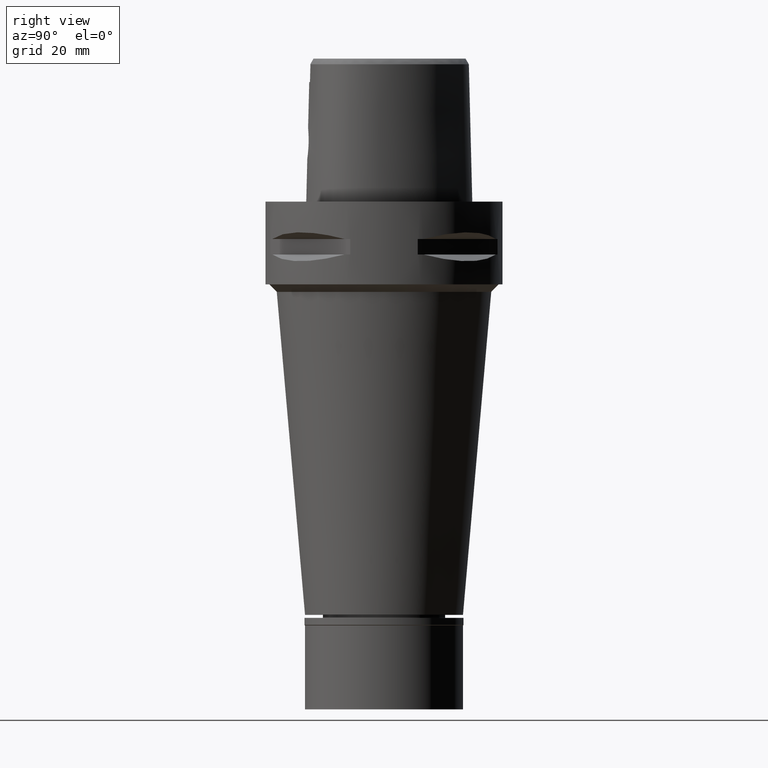
[diagram: clean part render]
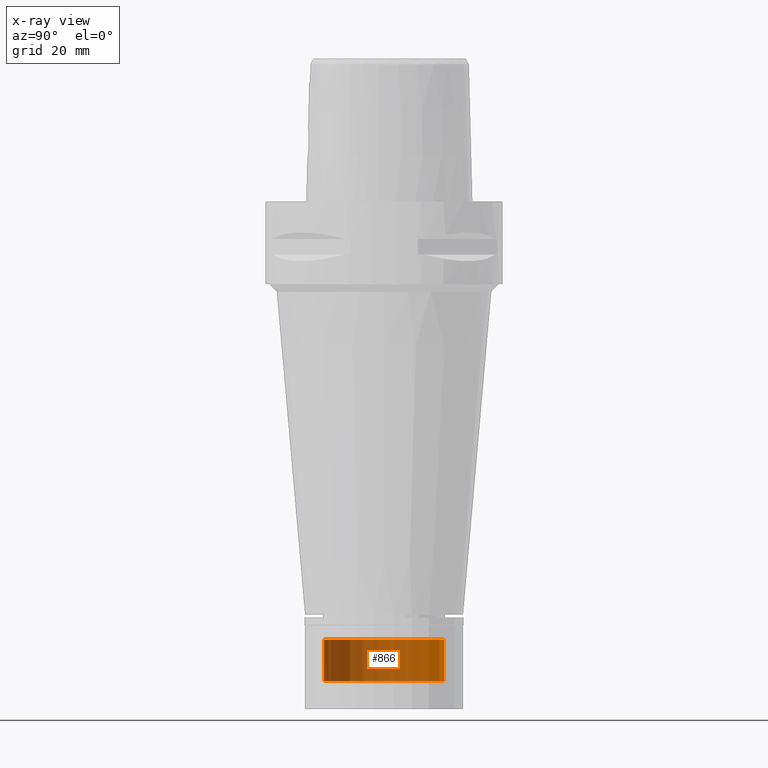
[diagram: x-ray — body ghosted, one internal face saturated and labeled with its STEP entity id]
A machine part, right view, then the same camera in x-ray: the body is ghosted and one INTERNAL B-rep face — a face not visible from any outside direction — is saturated and labeled: STEP entity #866.
In plain terms, the highlighted cylindrical surface (partial cylindrical patch) has radius 16 mm, axis along (0, 0, -1).
Its self-contained STEP definition (entity closure, byte-faithful):
#385 = AXIS2_PLACEMENT_3D ( 'NONE', #2758, #4270, #401 ) ;
#401 = DIRECTION ( 'NONE',  ( 0.0000000000000000000, -1.000000000000000000, 0.0000000000000000000 ) ) ;
#553 = VERTEX_POINT ( 'NONE', #1594 ) ;
#677 = FACE_OUTER_BOUND ( 'NONE', #1219, .T. ) ;
#834 = CARTESIAN_POINT ( 'NONE',  ( 0.0000000000000000000, 0.0000000000000000000, -127.5000000000000000 ) ) ;
#866 = ADVANCED_FACE ( 'NONE', ( #677 ), #1372, .T. ) ;
#868 = ORIENTED_EDGE ( 'NONE', *, *, #2636, .T. ) ;
#947 = VERTEX_POINT ( 'NONE', #1811 ) ;
#1219 = EDGE_LOOP ( 'NONE', ( #868, #1835, #3709, #5035 ) ) ;
#1356 = VERTEX_POINT ( 'NONE', #4121 ) ;
#1372 = CYLINDRICAL_SURFACE ( 'NONE', #3917, 16.00000000000000000 ) ;
#1416 = EDGE_CURVE ( 'NONE', #947, #1356, #3482, .T. ) ;
#1594 = CARTESIAN_POINT ( 'NONE',  ( 0.0000000000000000000, -16.00000000000000000, -116.5000000000000000 ) ) ;
#1605 = DIRECTION ( 'NONE',  ( 0.0000000000000000000, 0.0000000000000000000, 1.000000000000000000 ) ) ;
#1779 = DIRECTION ( 'NONE',  ( 0.0000000000000000000, 0.0000000000000000000, -1.000000000000000000 ) ) ;
#1811 = CARTESIAN_POINT ( 'NONE',  ( 0.0000000000000000000, 16.00000000000000000, -116.5000000000000000 ) ) ;
#1835 = ORIENTED_EDGE ( 'NONE', *, *, #2264, .F. ) ;
#1923 = DIRECTION ( 'NONE',  ( 0.0000000000000000000, 0.0000000000000000000, -1.000000000000000000 ) ) ;
#2173 = EDGE_CURVE ( 'NONE', #553, #947, #3583, .T. ) ;
#2264 = EDGE_CURVE ( 'NONE', #553, #3705, #2297, .T. ) ;
#2297 = LINE ( 'NONE', #4708, #4559 ) ;
#2636 = EDGE_CURVE ( 'NONE', #1356, #3705, #3330, .T. ) ;
#2758 = CARTESIAN_POINT ( 'NONE',  ( 0.0000000000000000000, 0.0000000000000000000, -116.5000000000000000 ) ) ;
#2904 = CARTESIAN_POINT ( 'NONE',  ( 0.0000000000000000000, 0.0000000000000000000, 6.375000000000000000 ) ) ;
#3174 = AXIS2_PLACEMENT_3D ( 'NONE', #834, #1605, #3208 ) ;
#3208 = DIRECTION ( 'NONE',  ( 0.0000000000000000000, 1.000000000000000000, 0.0000000000000000000 ) ) ;
#3330 = CIRCLE ( 'NONE', #3174, 16.00000000000000000 ) ;
#3424 = VECTOR ( 'NONE', #1923, 1000.000000000000000 ) ;
#3482 = LINE ( 'NONE', #4330, #3424 ) ;
#3583 = CIRCLE ( 'NONE', #385, 16.00000000000000000 ) ;
#3705 = VERTEX_POINT ( 'NONE', #4814 ) ;
#3709 = ORIENTED_EDGE ( 'NONE', *, *, #2173, .T. ) ;
#3801 = DIRECTION ( 'NONE',  ( 0.0000000000000000000, -1.000000000000000000, 0.0000000000000000000 ) ) ;
#3917 = AXIS2_PLACEMENT_3D ( 'NONE', #2904, #1779, #3801 ) ;
#4121 = CARTESIAN_POINT ( 'NONE',  ( 0.0000000000000000000, 16.00000000000000000, -127.5000000000000000 ) ) ;
#4270 = DIRECTION ( 'NONE',  ( 0.0000000000000000000, 0.0000000000000000000, -1.000000000000000000 ) ) ;
#4330 = CARTESIAN_POINT ( 'NONE',  ( 0.0000000000000000000, 16.00000000000000000, -116.5000000000000000 ) ) ;
#4350 = DIRECTION ( 'NONE',  ( 0.0000000000000000000, 0.0000000000000000000, -1.000000000000000000 ) ) ;
#4559 = VECTOR ( 'NONE', #4350, 1000.000000000000000 ) ;
#4708 = CARTESIAN_POINT ( 'NONE',  ( 0.0000000000000000000, -16.00000000000000000, -116.5000000000000000 ) ) ;
#4814 = CARTESIAN_POINT ( 'NONE',  ( 0.0000000000000000000, -16.00000000000000000, -127.5000000000000000 ) ) ;
#5035 = ORIENTED_EDGE ( 'NONE', *, *, #1416, .T. ) ;